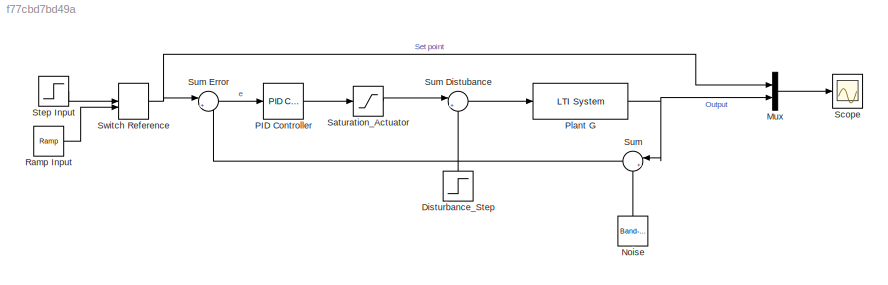
MODEL slx_f77cbd7bd49a
KIND model
CONFIG AbsTol = auto
CONFIG EnableMultiTasking = off
CONFIG FixedStep = auto
CONFIG MaxStep = auto
CONFIG MinStep = auto
CONFIG RelTol = 1e-3
CONFIG SampleTimeConstraint = Unconstrained
CONFIG SolverName = VariableStepAuto
CONFIG StartTime = 0.0
CONFIG StopTime = 1000
BLOCK [Step] Disturbance_Step
  After = -0.5
  NameLocation = right
  SampleTime = 0
  Time = 9999
BLOCK [Mux] Mux
  DisplayOption = bar
  Inputs = 2
BLOCK [Reference] Noise  REF=simulink/Sources/Band-Limited
White Noise
  NameLocation = right
  SourceBlock = simulink/Sources/Band-Limited\nWhite Noise
  SourceType = Band-Limited White Noise.
BLOCK [Reference] PID Controller  REF=slpidlib/PID Controller
  LibrarySourceBlock = simulink/Continuous/PID Controller
  SourceBlock = slpidlib/PID Controller
  SourceType = PID 1dof
BLOCK [Reference] Plant G  REF=cstblocks/LTI System
  SourceBlock = cstblocks/LTI System
  SourceType = LTI Block
BLOCK [Reference] Ramp Input  REF=simulink/Sources/Ramp
  SourceBlock = simulink/Sources/Ramp
  SourceType = Ramp
BLOCK [Saturate] Saturation_Actuator
  LowerLimit = 0
  UpperLimit = 100
BLOCK [Scope] Scope
  ActiveDisplayYMaximum = 1.2780776006000902
  ActiveDisplayYMinimum = -0.071792089393656444
  ContainerLayout = {"WindowBounds":[128,48,1280,768],"gridDimensions":{"w":1,"h":1},"tileCount":1,"tileCoverage":1,"columnWeights":1,"rowWeights":1,"tileOccupancy":{}}
  Floating = off
  GraphicalSettings = {"AxesScalingProperties":{"AlignXAxis":"Center","AlignYAxis":"Center","AutoScaleXAxisLimits":false,"AxesScaling":"Manual","AxesScalingNumUpdates":10,"ExpandOnly":true,"ScaleAxesLimitsAtStop":false,"XAxisDataRange":100,"YAxisDataRange":80},"Bilevel":{"AutoStateLevel":true,"Enabled":true,"HighStateLevel":2.3,"LowStateLevel":0,"LowerReferenceLevel":10,"MidReferenceLevel":50,"SettleSeek":118.7,"ShowAb...<+2711ch>
  MultipleDisplayCache = [{"MaxYLimMag":1.214882720994372,"MaxYLimReal":1.2780776006000902,"MinYLimMag":0,"MinYLimReal":-0.071792089393656444,"PlotAsMagnitudePhase":false,"ShowGrid":true,"ShowLegend":true,"Title":"%<SignalLabel>","YLabel":""}]
  NumInputPorts = 1
  ScopeFrameLocation = window
  ShowLegend = on
  Visible = on
  WasSavedAsWebScope = on
  WindowPosition = [341.000000,92.000000,1280.000000,768.000000,]
BLOCK [Step] Step Input
  SampleTime = 0
  Time = 5
BLOCK [Sum] Sum
  Inputs = |++
  NameLocation = top
BLOCK [Sum] Sum Distubance
  Inputs = |++
BLOCK [Sum] Sum Error
  Inputs = |+-
BLOCK [ManualSwitch] Switch Reference
LINE Disturbance_Step:1 -> Sum Distubance:2
LINE Mux:1 -> Scope:1
LINE Noise:1 -> Sum:2
LINE PID Controller:1 -> Saturation_Actuator:1
NET Plant G:1 -> Mux:2, Sum:1
LINE Ramp Input:1 -> Switch Reference:2
LINE Saturation_Actuator:1 -> Sum Distubance:1
LINE Step Input:1 -> Switch Reference:1
LINE Sum Distubance:1 -> Plant G:1
LINE Sum Error:1 -> PID Controller:1
LINE Sum:1 -> Sum Error:2
NET Switch Reference:1 -> Mux:1, Sum Error:1
note: NET lines group one-source signal fan-out (src -> all destinations, sorted); 1:1 wires keep LINE
